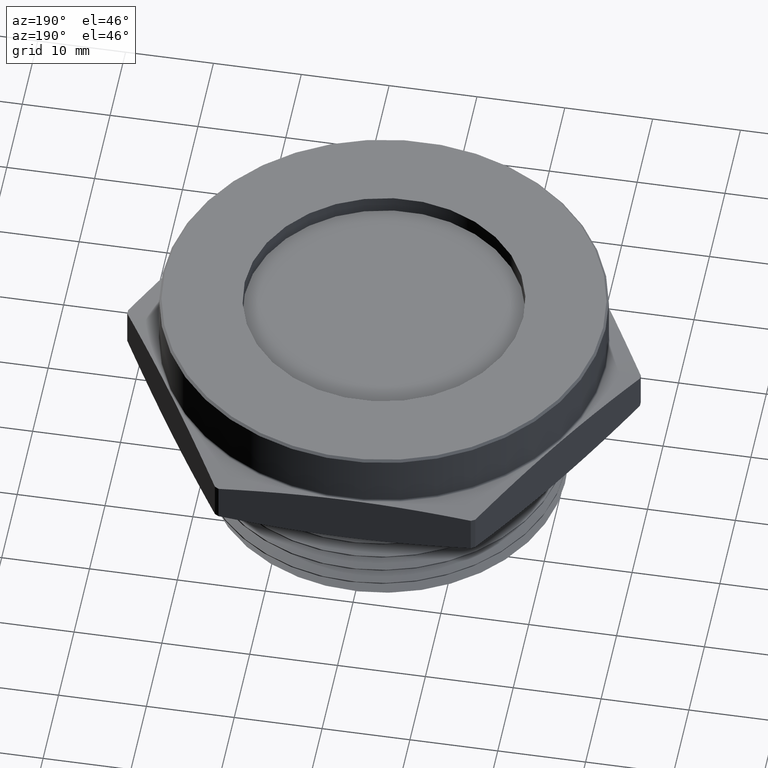
[diagram: clean part render]
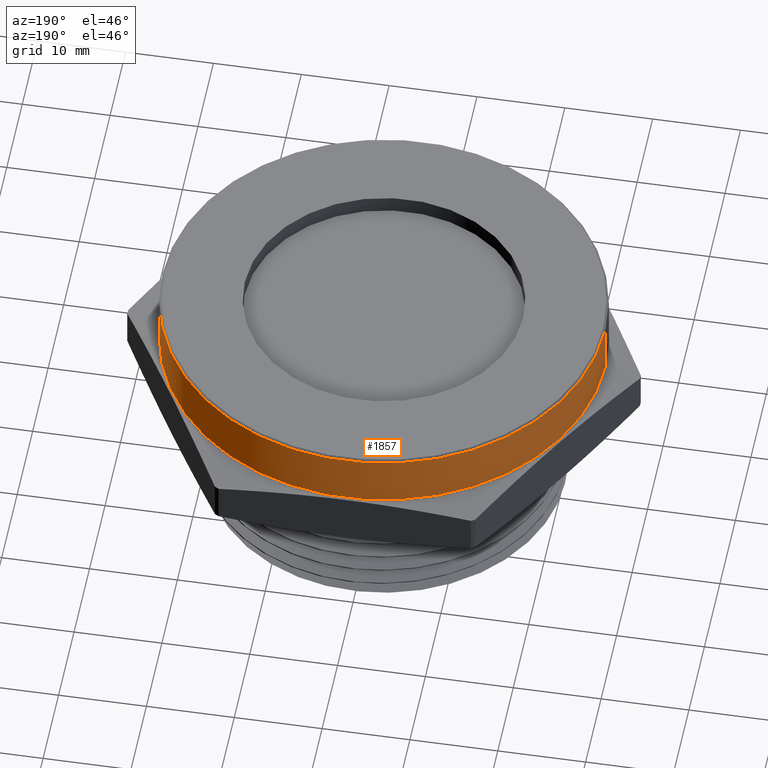
[diagram: same view with one face highlighted and labeled with its STEP entity id]
A machine part, auxiliary view. The second image highlights one B-rep face of the part: STEP entity #1857.
In plain terms, the highlighted cylindrical surface (partial cylindrical patch) has radius 25.2095 mm, axis along (-0, -0, -1).
Its self-contained STEP definition (entity closure, byte-faithful):
#126 = AXIS2_PLACEMENT_3D ( 'NONE', #361, #362, #363 ) ;
#127 = AXIS2_PLACEMENT_3D ( 'NONE', #368, #369, #370 ) ;
#151 = AXIS2_PLACEMENT_3D ( 'NONE', #3030, #3031, #3028 ) ;
#358 = DIRECTION ( 'NONE',  ( -0.0000000000000000000, -0.0000000000000000000, -1.000000000000000000 ) ) ;
#359 = CARTESIAN_POINT ( 'NONE',  ( 0.9925000000000004900, 1.215461948153748600E-016, 0.4899999999999999900 ) ) ;
#361 = CARTESIAN_POINT ( 'NONE',  ( 0.0000000000000000000, 0.0000000000000000000, 0.4800000000000002000 ) ) ;
#362 = DIRECTION ( 'NONE',  ( 0.0000000000000000000, 0.0000000000000000000, -1.000000000000000000 ) ) ;
#363 = DIRECTION ( 'NONE',  ( 1.000000000000000000, 0.0000000000000000000, 0.0000000000000000000 ) ) ;
#364 = CARTESIAN_POINT ( 'NONE',  ( -0.9925000000000004900, 0.0000000000000000000, 0.4899999999999999900 ) ) ;
#365 = DIRECTION ( 'NONE',  ( -0.0000000000000000000, -0.0000000000000000000, -1.000000000000000000 ) ) ;
#368 = CARTESIAN_POINT ( 'NONE',  ( 0.0000000000000000000, 0.0000000000000000000, 0.2464782722655602700 ) ) ;
#369 = DIRECTION ( 'NONE',  ( 6.123233995736748800E-017, 0.0000000000000000000, 1.000000000000000000 ) ) ;
#370 = DIRECTION ( 'NONE',  ( 1.000000000000000000, 0.0000000000000000000, -6.881229203184539000E-017 ) ) ;
#1293 = ORIENTED_EDGE ( 'NONE', *, *, #1332, .T. ) ;
#1332 = EDGE_CURVE ( 'NONE', #1405, #1391, #2630, .T. ) ;
#1334 = EDGE_CURVE ( 'NONE', #1391, #1398, #2634, .T. ) ;
#1335 = EDGE_CURVE ( 'NONE', #1398, #1388, #2637, .T. ) ;
#1336 = EDGE_CURVE ( 'NONE', #1405, #1388, #2639, .T. ) ;
#1388 = VERTEX_POINT ( 'NONE', #2963 ) ;
#1391 = VERTEX_POINT ( 'NONE', #2966 ) ;
#1398 = VERTEX_POINT ( 'NONE', #2971 ) ;
#1405 = VERTEX_POINT ( 'NONE', #2978 ) ;
#1568 = ORIENTED_EDGE ( 'NONE', *, *, #1334, .T. ) ;
#1569 = ORIENTED_EDGE ( 'NONE', *, *, #1336, .F. ) ;
#1571 = ORIENTED_EDGE ( 'NONE', *, *, #1335, .T. ) ;
#1597 = EDGE_LOOP ( 'NONE', ( #1293, #1568, #1571, #1569 ) ) ;
#1857 = ADVANCED_FACE ( 'NONE', ( #2700 ), #2702, .T. ) ;
#2630 = CIRCLE ( 'NONE', #126, 0.9925000000000004900 ) ;
#2634 = LINE ( 'NONE', #359, #2638 ) ;
#2637 = CIRCLE ( 'NONE', #127, 0.9925000000000004900 ) ;
#2638 = VECTOR ( 'NONE', #365, 39.37007874015748100 ) ;
#2639 = LINE ( 'NONE', #364, #2641 ) ;
#2641 = VECTOR ( 'NONE', #358, 39.37007874015748100 ) ;
#2700 = FACE_OUTER_BOUND ( 'NONE', #1597, .T. ) ;
#2702 = CYLINDRICAL_SURFACE ( 'NONE', #151, 0.9925000000000004900 ) ;
#2963 = CARTESIAN_POINT ( 'NONE',  ( -0.9925000000000004900, 0.0000000000000000000, 0.2464782722655603500 ) ) ;
#2966 = CARTESIAN_POINT ( 'NONE',  ( 0.9925000000000004900, 1.215461948153748600E-016, 0.4800000000000002000 ) ) ;
#2971 = CARTESIAN_POINT ( 'NONE',  ( 0.9925000000000004900, 1.215461948153748600E-016, 0.2464782722655602100 ) ) ;
#2978 = CARTESIAN_POINT ( 'NONE',  ( -0.9925000000000004900, 0.0000000000000000000, 0.4800000000000002000 ) ) ;
#3028 = DIRECTION ( 'NONE',  ( -1.000000000000000000, 0.0000000000000000000, 0.0000000000000000000 ) ) ;
#3030 = CARTESIAN_POINT ( 'NONE',  ( 0.0000000000000000000, 0.0000000000000000000, 0.4899999999999999900 ) ) ;
#3031 = DIRECTION ( 'NONE',  ( -0.0000000000000000000, -0.0000000000000000000, -1.000000000000000000 ) ) ;